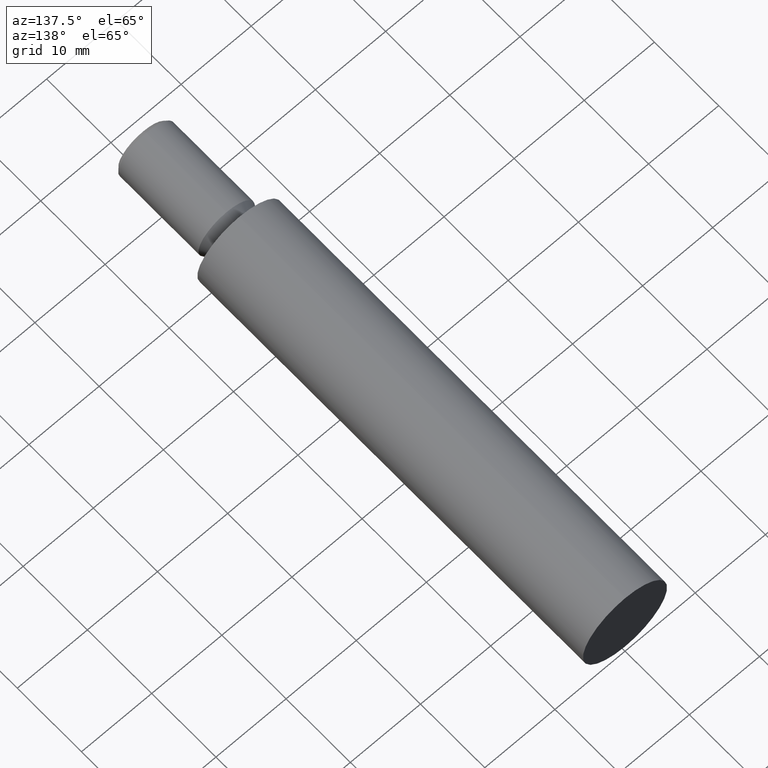
[diagram: clean part render]
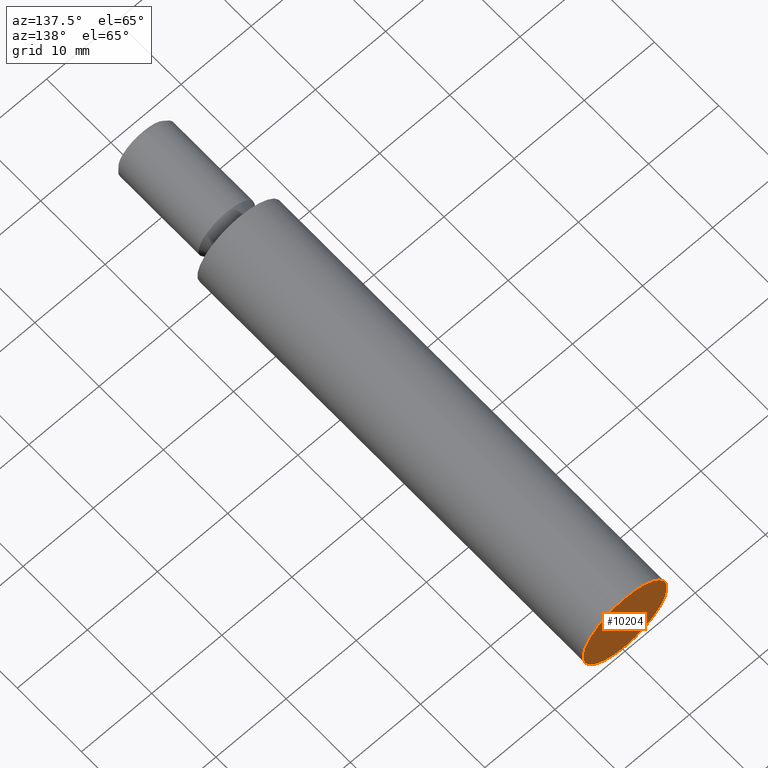
[diagram: same view with one face highlighted and labeled with its STEP entity id]
A machine part, auxiliary view. The second image highlights one B-rep face of the part: STEP entity #10204.
In plain terms, the highlighted planar face has unit normal (0, 1, 0).
Its self-contained STEP definition (entity closure, byte-faithful):
#37 = DIRECTION ( 'NONE',  ( 0.0000000000000000000, 0.0000000000000000000, -1.000000000000000000 ) ) ;
#66 = PLANE ( 'NONE',  #3318 ) ;
#165 = DIRECTION ( 'NONE',  ( 0.0000000000000000000, 1.000000000000000000, 0.0000000000000000000 ) ) ;
#211 = VERTEX_POINT ( 'NONE', #8706 ) ;
#1470 = VERTEX_POINT ( 'NONE', #8283 ) ;
#2414 = CARTESIAN_POINT ( 'NONE',  ( 0.0000000000000000000, 60.00000000000000000, 0.0000000000000000000 ) ) ;
#2461 = ORIENTED_EDGE ( 'NONE', *, *, #7678, .F. ) ;
#2467 = CIRCLE ( 'NONE', #11322, 5.999999999999998200 ) ;
#3318 = AXIS2_PLACEMENT_3D ( 'NONE', #2414, #165, #10416 ) ;
#5120 = EDGE_LOOP ( 'NONE', ( #8982, #2461 ) ) ;
#6200 = AXIS2_PLACEMENT_3D ( 'NONE', #7241, #8393, #8494 ) ;
#7241 = CARTESIAN_POINT ( 'NONE',  ( 0.0000000000000000000, 60.00000000000000000, 0.0000000000000000000 ) ) ;
#7251 = FACE_OUTER_BOUND ( 'NONE', #5120, .T. ) ;
#7678 = EDGE_CURVE ( 'NONE', #211, #1470, #11795, .T. ) ;
#7774 = EDGE_CURVE ( 'NONE', #1470, #211, #2467, .T. ) ;
#8283 = CARTESIAN_POINT ( 'NONE',  ( 0.0000000000000000000, 60.00000000000000000, -5.999999999999998200 ) ) ;
#8393 = DIRECTION ( 'NONE',  ( -0.0000000000000000000, -1.000000000000000000, -0.0000000000000000000 ) ) ;
#8494 = DIRECTION ( 'NONE',  ( 0.0000000000000000000, 0.0000000000000000000, -1.000000000000000000 ) ) ;
#8706 = CARTESIAN_POINT ( 'NONE',  ( 7.347880794884122700E-016, 60.00000000000000000, 5.999999999999998200 ) ) ;
#8982 = ORIENTED_EDGE ( 'NONE', *, *, #7774, .F. ) ;
#9055 = CARTESIAN_POINT ( 'NONE',  ( 0.0000000000000000000, 60.00000000000000000, 0.0000000000000000000 ) ) ;
#10204 = ADVANCED_FACE ( 'NONE', ( #7251 ), #66, .T. ) ;
#10416 = DIRECTION ( 'NONE',  ( 0.0000000000000000000, -0.0000000000000000000, 1.000000000000000000 ) ) ;
#11322 = AXIS2_PLACEMENT_3D ( 'NONE', #9055, #14824, #37 ) ;
#11795 = CIRCLE ( 'NONE', #6200, 5.999999999999998200 ) ;
#14824 = DIRECTION ( 'NONE',  ( -0.0000000000000000000, -1.000000000000000000, -0.0000000000000000000 ) ) ;